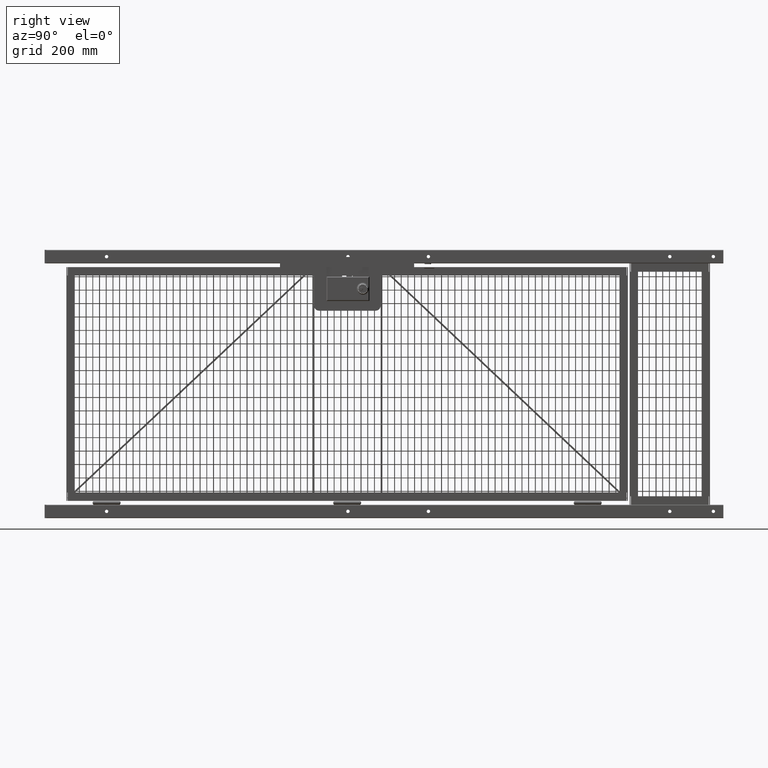
[diagram: clean part render]
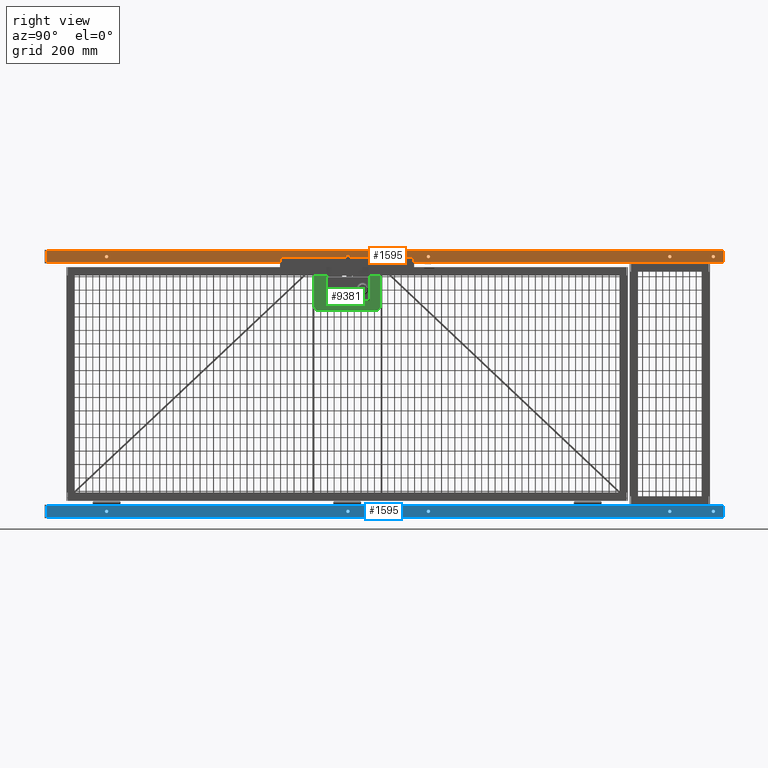
[diagram: same view with three faces highlighted in distinct colors, each labeled with its STEP entity id]
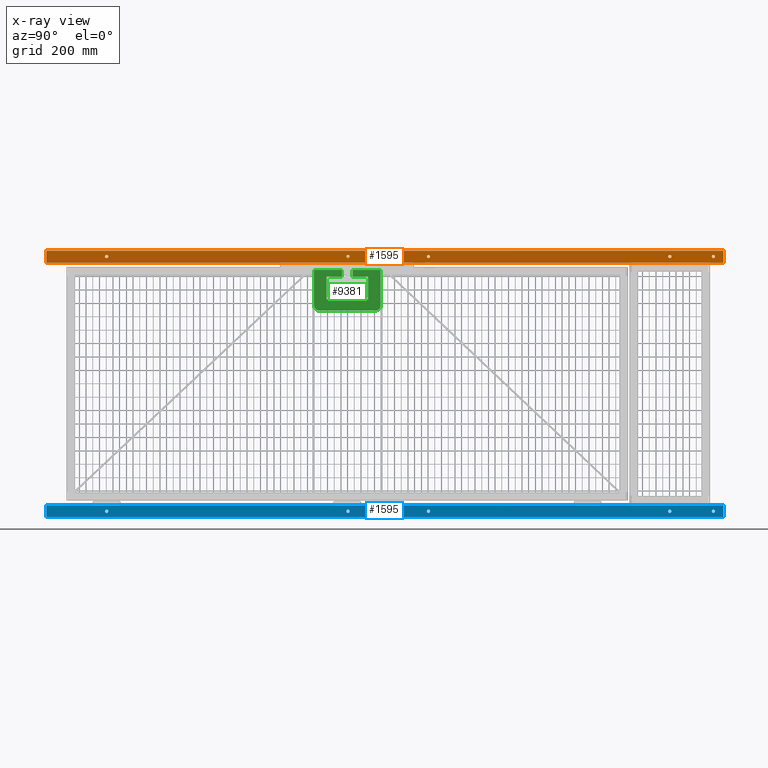
[diagram: x-ray of the same camera — body ghosted, the three highlighted faces saturated]
A machine part, right view with three faces highlighted in distinct colors.
The next image is the same camera in x-ray (body ghosted, the three faces saturated) — at least one of them is partly hidden behind the body in this view.
Their STEP definitions:

[orange] entity #1595 — the highlighted planar face has unit normal (1, 0, 0).
#479=CARTESIAN_POINT('',(1.0,2.835442E-014,99.250000000000000));
#480=VERTEX_POINT('',#479);
#481=CARTESIAN_POINT('',(1.0,2.832380E-014,99.500000000000000));
#482=DIRECTION('',(-1.0,0.0,0.0));
#483=DIRECTION('',(0.0,0.0,1.0));
#484=AXIS2_PLACEMENT_3D('',#481,#482,#483);
#485=CIRCLE('',#484,0.250000000000000);
#486=EDGE_CURVE('',#480,#480,#485,.T.);
#815=CARTESIAN_POINT('',(1.0,2.817958E-014,44.750000000000000));
#816=VERTEX_POINT('',#815);
#817=CARTESIAN_POINT('',(1.0,2.814896E-014,45.000000000000007));
#818=DIRECTION('',(-1.0,0.0,0.0));
#819=DIRECTION('',(0.0,0.0,1.0));
#820=AXIS2_PLACEMENT_3D('',#817,#818,#819);
#821=CIRCLE('',#820,0.250000000000005);
#822=EDGE_CURVE('',#816,#816,#821,.T.);
#871=CARTESIAN_POINT('',(1.0,2.817958E-014,92.750000000000014));
#872=VERTEX_POINT('',#871);
#873=CARTESIAN_POINT('',(1.0,2.814896E-014,93.0));
#874=DIRECTION('',(-1.0,0.0,0.0));
#875=DIRECTION('',(0.0,0.0,1.0));
#876=AXIS2_PLACEMENT_3D('',#873,#874,#875);
#877=CIRCLE('',#876,0.249999999999998);
#878=EDGE_CURVE('',#872,#872,#877,.T.);
#927=CARTESIAN_POINT('',(1.0,2.817958E-014,56.750000000000007));
#928=VERTEX_POINT('',#927);
#929=CARTESIAN_POINT('',(1.0,2.814896E-014,57.000000000000007));
#930=DIRECTION('',(-1.0,0.0,0.0));
#931=DIRECTION('',(0.0,0.0,1.0));
#932=AXIS2_PLACEMENT_3D('',#929,#930,#931);
#933=CIRCLE('',#932,0.249999999999998);
#934=EDGE_CURVE('',#928,#928,#933,.T.);
#983=CARTESIAN_POINT('',(1.0,2.835442E-014,8.750000000000009));
#984=VERTEX_POINT('',#983);
#985=CARTESIAN_POINT('',(1.0,2.832380E-014,9.000000000000005));
#986=DIRECTION('',(-1.0,0.0,0.0));
#987=DIRECTION('',(0.0,0.0,1.0));
#988=AXIS2_PLACEMENT_3D('',#985,#986,#987);
#989=CIRCLE('',#988,0.249999999999997);
#990=EDGE_CURVE('',#984,#984,#989,.T.);
#1522=CARTESIAN_POINT('',(1.0,0.875000000000028,100.999999999999990));
#1523=VERTEX_POINT('',#1522);
#1531=CARTESIAN_POINT('',(1.0,0.875000000000028,0.0));
#1532=VERTEX_POINT('',#1531);
#1533=CARTESIAN_POINT('',(1.0,0.875000000000028,0.0));
#1534=DIRECTION('',(0.0,0.0,1.0));
#1535=VECTOR('',#1534,100.999999999999990);
#1536=LINE('',#1533,#1535);
#1537=EDGE_CURVE('',#1532,#1523,#1536,.T.);
#1550=CARTESIAN_POINT('',(1.0,0.875000000000028,0.0));
#1551=DIRECTION('',(1.0,0.0,0.0));
#1552=DIRECTION('',(0.0,0.0,-1.0));
#1553=AXIS2_PLACEMENT_3D('',#1550,#1551,#1552);
#1554=PLANE('',#1553);
#1555=CARTESIAN_POINT('',(1.0,-0.874999999999972,100.999999999999990));
#1556=VERTEX_POINT('',#1555);
#1557=CARTESIAN_POINT('',(1.0,0.875000000000028,100.999999999999990));
#1558=DIRECTION('',(0.0,-1.0,0.0));
#1559=VECTOR('',#1558,1.750000000000000);
#1560=LINE('',#1557,#1559);
#1561=EDGE_CURVE('',#1523,#1556,#1560,.T.);
#1562=ORIENTED_EDGE('',*,*,#1561,.T.);
#1563=CARTESIAN_POINT('',(1.0,-0.874999999999972,0.0));
#1564=VERTEX_POINT('',#1563);
#1565=CARTESIAN_POINT('',(1.0,-0.874999999999972,0.0));
#1566=DIRECTION('',(0.0,0.0,1.0));
#1567=VECTOR('',#1566,100.999999999999990);
#1568=LINE('',#1565,#1567);
#1569=EDGE_CURVE('',#1564,#1556,#1568,.T.);
#1570=ORIENTED_EDGE('',*,*,#1569,.F.);
#1571=CARTESIAN_POINT('',(1.0,0.875000000000028,0.0));
#1572=DIRECTION('',(0.0,-1.0,0.0));
#1573=VECTOR('',#1572,1.750000000000000);
#1574=LINE('',#1571,#1573);
#1575=EDGE_CURVE('',#1532,#1564,#1574,.T.);
#1576=ORIENTED_EDGE('',*,*,#1575,.F.);
#1577=ORIENTED_EDGE('',*,*,#1537,.T.);
#1578=EDGE_LOOP('',(#1562,#1570,#1576,#1577));
#1579=FACE_OUTER_BOUND('',#1578,.T.);
#1580=ORIENTED_EDGE('',*,*,#486,.T.);
#1581=EDGE_LOOP('',(#1580));
#1582=FACE_BOUND('',#1581,.T.);
#1583=ORIENTED_EDGE('',*,*,#822,.T.);
#1584=EDGE_LOOP('',(#1583));
#1585=FACE_BOUND('',#1584,.T.);
#1586=ORIENTED_EDGE('',*,*,#878,.T.);
#1587=EDGE_LOOP('',(#1586));
#1588=FACE_BOUND('',#1587,.T.);
#1589=ORIENTED_EDGE('',*,*,#934,.T.);
#1590=EDGE_LOOP('',(#1589));
#1591=FACE_BOUND('',#1590,.T.);
#1592=ORIENTED_EDGE('',*,*,#990,.T.);
#1593=EDGE_LOOP('',(#1592));
#1594=FACE_BOUND('',#1593,.T.);
#1595=ADVANCED_FACE('',(#1579,#1582,#1585,#1588,#1591,#1594),#1554,.T.);

[blue] entity #1595 — the highlighted planar face has unit normal (1, 0, 0).
#479=CARTESIAN_POINT('',(1.0,2.835442E-014,99.250000000000000));
#480=VERTEX_POINT('',#479);
#481=CARTESIAN_POINT('',(1.0,2.832380E-014,99.500000000000000));
#482=DIRECTION('',(-1.0,0.0,0.0));
#483=DIRECTION('',(0.0,0.0,1.0));
#484=AXIS2_PLACEMENT_3D('',#481,#482,#483);
#485=CIRCLE('',#484,0.250000000000000);
#486=EDGE_CURVE('',#480,#480,#485,.T.);
#815=CARTESIAN_POINT('',(1.0,2.817958E-014,44.750000000000000));
#816=VERTEX_POINT('',#815);
#817=CARTESIAN_POINT('',(1.0,2.814896E-014,45.000000000000007));
#818=DIRECTION('',(-1.0,0.0,0.0));
#819=DIRECTION('',(0.0,0.0,1.0));
#820=AXIS2_PLACEMENT_3D('',#817,#818,#819);
#821=CIRCLE('',#820,0.250000000000005);
#822=EDGE_CURVE('',#816,#816,#821,.T.);
#871=CARTESIAN_POINT('',(1.0,2.817958E-014,92.750000000000014));
#872=VERTEX_POINT('',#871);
#873=CARTESIAN_POINT('',(1.0,2.814896E-014,93.0));
#874=DIRECTION('',(-1.0,0.0,0.0));
#875=DIRECTION('',(0.0,0.0,1.0));
#876=AXIS2_PLACEMENT_3D('',#873,#874,#875);
#877=CIRCLE('',#876,0.249999999999998);
#878=EDGE_CURVE('',#872,#872,#877,.T.);
#927=CARTESIAN_POINT('',(1.0,2.817958E-014,56.750000000000007));
#928=VERTEX_POINT('',#927);
#929=CARTESIAN_POINT('',(1.0,2.814896E-014,57.000000000000007));
#930=DIRECTION('',(-1.0,0.0,0.0));
#931=DIRECTION('',(0.0,0.0,1.0));
#932=AXIS2_PLACEMENT_3D('',#929,#930,#931);
#933=CIRCLE('',#932,0.249999999999998);
#934=EDGE_CURVE('',#928,#928,#933,.T.);
#983=CARTESIAN_POINT('',(1.0,2.835442E-014,8.750000000000009));
#984=VERTEX_POINT('',#983);
#985=CARTESIAN_POINT('',(1.0,2.832380E-014,9.000000000000005));
#986=DIRECTION('',(-1.0,0.0,0.0));
#987=DIRECTION('',(0.0,0.0,1.0));
#988=AXIS2_PLACEMENT_3D('',#985,#986,#987);
#989=CIRCLE('',#988,0.249999999999997);
#990=EDGE_CURVE('',#984,#984,#989,.T.);
#1522=CARTESIAN_POINT('',(1.0,0.875000000000028,100.999999999999990));
#1523=VERTEX_POINT('',#1522);
#1531=CARTESIAN_POINT('',(1.0,0.875000000000028,0.0));
#1532=VERTEX_POINT('',#1531);
#1533=CARTESIAN_POINT('',(1.0,0.875000000000028,0.0));
#1534=DIRECTION('',(0.0,0.0,1.0));
#1535=VECTOR('',#1534,100.999999999999990);
#1536=LINE('',#1533,#1535);
#1537=EDGE_CURVE('',#1532,#1523,#1536,.T.);
#1550=CARTESIAN_POINT('',(1.0,0.875000000000028,0.0));
#1551=DIRECTION('',(1.0,0.0,0.0));
#1552=DIRECTION('',(0.0,0.0,-1.0));
#1553=AXIS2_PLACEMENT_3D('',#1550,#1551,#1552);
#1554=PLANE('',#1553);
#1555=CARTESIAN_POINT('',(1.0,-0.874999999999972,100.999999999999990));
#1556=VERTEX_POINT('',#1555);
#1557=CARTESIAN_POINT('',(1.0,0.875000000000028,100.999999999999990));
#1558=DIRECTION('',(0.0,-1.0,0.0));
#1559=VECTOR('',#1558,1.750000000000000);
#1560=LINE('',#1557,#1559);
#1561=EDGE_CURVE('',#1523,#1556,#1560,.T.);
#1562=ORIENTED_EDGE('',*,*,#1561,.T.);
#1563=CARTESIAN_POINT('',(1.0,-0.874999999999972,0.0));
#1564=VERTEX_POINT('',#1563);
#1565=CARTESIAN_POINT('',(1.0,-0.874999999999972,0.0));
#1566=DIRECTION('',(0.0,0.0,1.0));
#1567=VECTOR('',#1566,100.999999999999990);
#1568=LINE('',#1565,#1567);
#1569=EDGE_CURVE('',#1564,#1556,#1568,.T.);
#1570=ORIENTED_EDGE('',*,*,#1569,.F.);
#1571=CARTESIAN_POINT('',(1.0,0.875000000000028,0.0));
#1572=DIRECTION('',(0.0,-1.0,0.0));
#1573=VECTOR('',#1572,1.750000000000000);
#1574=LINE('',#1571,#1573);
#1575=EDGE_CURVE('',#1532,#1564,#1574,.T.);
#1576=ORIENTED_EDGE('',*,*,#1575,.F.);
#1577=ORIENTED_EDGE('',*,*,#1537,.T.);
#1578=EDGE_LOOP('',(#1562,#1570,#1576,#1577));
#1579=FACE_OUTER_BOUND('',#1578,.T.);
#1580=ORIENTED_EDGE('',*,*,#486,.T.);
#1581=EDGE_LOOP('',(#1580));
#1582=FACE_BOUND('',#1581,.T.);
#1583=ORIENTED_EDGE('',*,*,#822,.T.);
#1584=EDGE_LOOP('',(#1583));
#1585=FACE_BOUND('',#1584,.T.);
#1586=ORIENTED_EDGE('',*,*,#878,.T.);
#1587=EDGE_LOOP('',(#1586));
#1588=FACE_BOUND('',#1587,.T.);
#1589=ORIENTED_EDGE('',*,*,#934,.T.);
#1590=EDGE_LOOP('',(#1589));
#1591=FACE_BOUND('',#1590,.T.);
#1592=ORIENTED_EDGE('',*,*,#990,.T.);
#1593=EDGE_LOOP('',(#1592));
#1594=FACE_BOUND('',#1593,.T.);
#1595=ADVANCED_FACE('',(#1579,#1582,#1585,#1588,#1591,#1594),#1554,.T.);

[green] entity #9381 — the highlighted planar face has unit normal (1, -0, -0).
#7792=CARTESIAN_POINT('',(1.007999999999981,7.573999999999956,0.062500000000000));
#7793=VERTEX_POINT('',#7792);
#7839=CARTESIAN_POINT('',(1.508000000000493,8.073999999999955,0.062500000000000));
#7840=VERTEX_POINT('',#7839);
#7897=CARTESIAN_POINT('',(3.903999999999996,1.863999999999920,0.062500000000000));
#7898=VERTEX_POINT('',#7897);
#7957=CARTESIAN_POINT('',(4.403999999999998,2.363999999999920,0.062500000000000));
#7958=VERTEX_POINT('',#7957);
#8013=CARTESIAN_POINT('',(1.007999999999981,2.363999999999920,0.062500000000000));
#8014=VERTEX_POINT('',#8013);
#8073=CARTESIAN_POINT('',(1.507999999999981,1.863999999999920,0.062500000000000));
#8074=VERTEX_POINT('',#8073);
#8140=CARTESIAN_POINT('',(3.903999999999996,8.073999999999955,0.062500000000000));
#8141=VERTEX_POINT('',#8140);
#8187=CARTESIAN_POINT('',(4.403999999999998,7.574000000000980,0.062500000000000));
#8188=VERTEX_POINT('',#8187);
#8301=CARTESIAN_POINT('',(1.007999999999981,5.749000000010597,0.062500000000000));
#8302=VERTEX_POINT('',#8301);
#8303=CARTESIAN_POINT('',(1.007999999999981,7.573999999999956,0.062500000000000));
#8304=DIRECTION('',(0.0,-1.0,0.0));
#8305=VECTOR('',#8304,1.824999999989359);
#8306=LINE('',#8303,#8305);
#8307=EDGE_CURVE('',#7793,#8302,#8306,.T.);
#8390=CARTESIAN_POINT('',(1.008000000000038,4.189000000001443,0.062500000000000));
#8391=VERTEX_POINT('',#8390);
#8399=CARTESIAN_POINT('',(1.007999999999981,4.189000000001443,0.062500000000000));
#8400=DIRECTION('',(0.0,-1.0,0.0));
#8401=VECTOR('',#8400,1.825000000001523);
#8402=LINE('',#8399,#8401);
#8403=EDGE_CURVE('',#8391,#8014,#8402,.T.);
#8547=CARTESIAN_POINT('',(1.507999999999981,1.863999999999919,0.062500000000000));
#8548=DIRECTION('',(1.0,0.0,0.0));
#8549=VECTOR('',#8548,2.396000000000016);
#8550=LINE('',#8547,#8549);
#8551=EDGE_CURVE('',#8074,#7898,#8550,.T.);
#8581=CARTESIAN_POINT('',(3.903999999999996,8.073999999999955,0.062500000000000));
#8582=DIRECTION('',(-1.0,0.0,0.0));
#8583=VECTOR('',#8582,2.395999999999504);
#8584=LINE('',#8581,#8583);
#8585=EDGE_CURVE('',#8141,#7840,#8584,.T.);
#8774=CARTESIAN_POINT('',(4.403999999999996,2.363999999999919,0.062500000000000));
#8775=DIRECTION('',(0.0,1.0,0.0));
#8776=VECTOR('',#8775,5.210000000001060);
#8777=LINE('',#8774,#8776);
#8778=EDGE_CURVE('',#7958,#8188,#8777,.T.);
#8849=CARTESIAN_POINT('',(1.007999999999981,1.863999999999919,0.062500000000000));
#8850=VERTEX_POINT('',#8849);
#8857=CARTESIAN_POINT('',(1.007999999999981,1.863999999999919,0.062500000000000));
#8858=DIRECTION('',(1.0,0.0,0.0));
#8859=VECTOR('',#8858,0.500000000000000);
#8860=LINE('',#8857,#8859);
#8861=EDGE_CURVE('',#8850,#8074,#8860,.T.);
#8872=CARTESIAN_POINT('',(4.403999999999996,1.863999999999919,0.062500000000000));
#8873=VERTEX_POINT('',#8872);
#8874=CARTESIAN_POINT('',(3.903999999999996,1.863999999999919,0.062500000000000));
#8875=DIRECTION('',(1.0,0.0,0.0));
#8876=VECTOR('',#8875,0.500000000000000);
#8877=LINE('',#8874,#8876);
#8878=EDGE_CURVE('',#7898,#8873,#8877,.T.);
#8911=CARTESIAN_POINT('',(4.403999999999996,8.073999999999955,0.062500000000000));
#8912=VERTEX_POINT('',#8911);
#8919=CARTESIAN_POINT('',(4.403999999999996,8.073999999999955,0.062500000000000));
#8920=DIRECTION('',(-1.0,0.0,0.0));
#8921=VECTOR('',#8920,0.500000000000000);
#8922=LINE('',#8919,#8921);
#8923=EDGE_CURVE('',#8912,#8141,#8922,.T.);
#8934=CARTESIAN_POINT('',(1.007999999999981,8.073999999999955,0.062500000000000));
#8935=VERTEX_POINT('',#8934);
#8936=CARTESIAN_POINT('',(1.508000000000493,8.073999999999955,0.062500000000000));
#8937=DIRECTION('',(-1.0,0.0,0.0));
#8938=VECTOR('',#8937,0.500000000000511);
#8939=LINE('',#8936,#8938);
#8940=EDGE_CURVE('',#7840,#8935,#8939,.T.);
#8965=CARTESIAN_POINT('',(1.007999999999981,2.363999999999920,0.062500000000000));
#8966=DIRECTION('',(0.0,-1.0,0.0));
#8967=VECTOR('',#8966,0.500000000000000);
#8968=LINE('',#8965,#8967);
#8969=EDGE_CURVE('',#8014,#8850,#8968,.T.);
#8994=CARTESIAN_POINT('',(4.403999999999996,1.863999999999919,0.062500000000000));
#8995=DIRECTION('',(0.0,1.0,0.0));
#8996=VECTOR('',#8995,0.500000000000000);
#8997=LINE('',#8994,#8996);
#8998=EDGE_CURVE('',#8873,#7958,#8997,.T.);
#9009=CARTESIAN_POINT('',(4.403999999999996,7.574000000000980,0.062500000000000));
#9010=DIRECTION('',(0.0,1.0,0.0));
#9011=VECTOR('',#9010,0.499999999998976);
#9012=LINE('',#9009,#9011);
#9013=EDGE_CURVE('',#8188,#8912,#9012,.T.);
#9031=CARTESIAN_POINT('',(6.068000000005156,9.188000000012039,0.062500000000000));
#9032=VERTEX_POINT('',#9031);
#9033=CARTESIAN_POINT('',(6.068000000005156,0.750000000000000,0.062500000000000));
#9034=VERTEX_POINT('',#9033);
#9035=CARTESIAN_POINT('',(6.068000000005156,9.188000000012039,0.062500000000000));
#9036=DIRECTION('',(0.0,-1.0,0.0));
#9037=VECTOR('',#9036,8.438000000012039);
#9038=LINE('',#9035,#9037);
#9039=EDGE_CURVE('',#9032,#9034,#9038,.T.);
#9071=CARTESIAN_POINT('',(5.318000000005157,0.0,0.062500000000000));
#9072=VERTEX_POINT('',#9071);
#9073=CARTESIAN_POINT('',(5.318000000005157,0.750000000000000,0.062500000000000));
#9074=DIRECTION('',(0.0,0.0,-1.0));
#9075=DIRECTION('',(0.0,-1.0,0.0));
#9076=AXIS2_PLACEMENT_3D('',#9073,#9074,#9075);
#9077=CIRCLE('',#9076,0.750000000000000);
#9078=EDGE_CURVE('',#9034,#9072,#9077,.T.);
#9104=CARTESIAN_POINT('',(0.0,0.0,0.062500000000000));
#9105=VERTEX_POINT('',#9104);
#9106=CARTESIAN_POINT('',(5.318000000005157,0.0,0.062500000000000));
#9107=DIRECTION('',(-1.0,0.0,0.0));
#9108=VECTOR('',#9107,5.318000000005157);
#9109=LINE('',#9106,#9108);
#9110=EDGE_CURVE('',#9072,#9105,#9109,.T.);
#9135=CARTESIAN_POINT('',(0.0,4.189000000001443,0.062500000000000));
#9136=VERTEX_POINT('',#9135);
#9137=CARTESIAN_POINT('',(0.0,0.0,0.062500000000000));
#9138=DIRECTION('',(0.0,1.0,0.0));
#9139=VECTOR('',#9138,4.189000000001443);
#9140=LINE('',#9137,#9139);
#9141=EDGE_CURVE('',#9105,#9136,#9140,.T.);
#9166=CARTESIAN_POINT('',(0.0,4.189000000001443,0.062500000000000));
#9167=DIRECTION('',(1.0,0.0,0.0));
#9168=VECTOR('',#9167,1.008000000000038);
#9169=LINE('',#9166,#9168);
#9170=EDGE_CURVE('',#9136,#8391,#9169,.T.);
#9195=CARTESIAN_POINT('',(1.007999999999981,8.073999999999955,0.062500000000000));
#9196=DIRECTION('',(0.0,-1.0,0.0));
#9197=VECTOR('',#9196,0.499999999999999);
#9198=LINE('',#9195,#9197);
#9199=EDGE_CURVE('',#8935,#7793,#9198,.T.);
#9210=CARTESIAN_POINT('',(0.0,5.749000000010597,0.062500000000000));
#9211=VERTEX_POINT('',#9210);
#9212=CARTESIAN_POINT('',(1.007999999999981,5.749000000010597,0.062500000000000));
#9213=DIRECTION('',(-1.0,0.0,0.0));
#9214=VECTOR('',#9213,1.007999999999981);
#9215=LINE('',#9212,#9214);
#9216=EDGE_CURVE('',#8302,#9211,#9215,.T.);
#9241=CARTESIAN_POINT('',(0.0,9.938000000012041,0.062500000000000));
#9242=VERTEX_POINT('',#9241);
#9243=CARTESIAN_POINT('',(0.0,5.749000000010597,0.062500000000000));
#9244=DIRECTION('',(0.0,1.0,0.0));
#9245=VECTOR('',#9244,4.189000000001443);
#9246=LINE('',#9243,#9245);
#9247=EDGE_CURVE('',#9211,#9242,#9246,.T.);
#9272=CARTESIAN_POINT('',(5.318000000005157,9.938000000012041,0.062500000000000));
#9273=VERTEX_POINT('',#9272);
#9274=CARTESIAN_POINT('',(0.0,9.938000000012041,0.062500000000000));
#9275=DIRECTION('',(1.0,0.0,0.0));
#9276=VECTOR('',#9275,5.318000000005157);
#9277=LINE('',#9274,#9276);
#9278=EDGE_CURVE('',#9242,#9273,#9277,.T.);
#9303=CARTESIAN_POINT('',(5.318000000005157,9.188000000012039,0.062500000000000));
#9304=DIRECTION('',(0.0,0.0,-1.0));
#9305=DIRECTION('',(1.0,0.0,0.0));
#9306=AXIS2_PLACEMENT_3D('',#9303,#9304,#9305);
#9307=CIRCLE('',#9306,0.750000000000000);
#9308=EDGE_CURVE('',#9273,#9032,#9307,.T.);
#9352=CARTESIAN_POINT('',(2.921513186479215,4.969000000003659,0.062500000000000));
#9353=DIRECTION('',(0.0,0.0,1.0));
#9354=DIRECTION('',(1.0,0.0,0.0));
#9355=AXIS2_PLACEMENT_3D('',#9352,#9353,#9354);
#9356=PLANE('',#9355);
#9357=ORIENTED_EDGE('',*,*,#9039,.F.);
#9358=ORIENTED_EDGE('',*,*,#9308,.F.);
#9359=ORIENTED_EDGE('',*,*,#9278,.F.);
#9360=ORIENTED_EDGE('',*,*,#9247,.F.);
#9361=ORIENTED_EDGE('',*,*,#9216,.F.);
#9362=ORIENTED_EDGE('',*,*,#8307,.F.);
#9363=ORIENTED_EDGE('',*,*,#9199,.F.);
#9364=ORIENTED_EDGE('',*,*,#8940,.F.);
#9365=ORIENTED_EDGE('',*,*,#8585,.F.);
#9366=ORIENTED_EDGE('',*,*,#8923,.F.);
#9367=ORIENTED_EDGE('',*,*,#9013,.F.);
#9368=ORIENTED_EDGE('',*,*,#8778,.F.);
#9369=ORIENTED_EDGE('',*,*,#8998,.F.);
#9370=ORIENTED_EDGE('',*,*,#8878,.F.);
#9371=ORIENTED_EDGE('',*,*,#8551,.F.);
#9372=ORIENTED_EDGE('',*,*,#8861,.F.);
#9373=ORIENTED_EDGE('',*,*,#8969,.F.);
#9374=ORIENTED_EDGE('',*,*,#8403,.F.);
#9375=ORIENTED_EDGE('',*,*,#9170,.F.);
#9376=ORIENTED_EDGE('',*,*,#9141,.F.);
#9377=ORIENTED_EDGE('',*,*,#9110,.F.);
#9378=ORIENTED_EDGE('',*,*,#9078,.F.);
#9379=EDGE_LOOP('',(#9357,#9358,#9359,#9360,#9361,#9362,#9363,#9364,#9365,#9366,#9367,#9368,#9369,#9370,#9371,#9372,#9373,#9374,#9375,#9376,#9377,#9378));
#9380=FACE_OUTER_BOUND('',#9379,.T.);
#9381=ADVANCED_FACE('',(#9380),#9356,.T.);